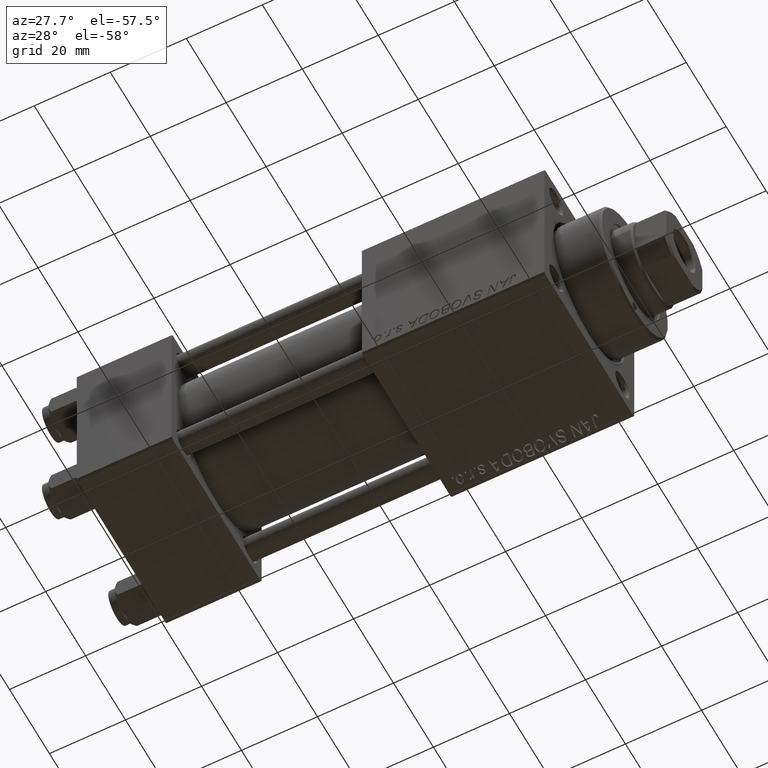
[diagram: clean part render]
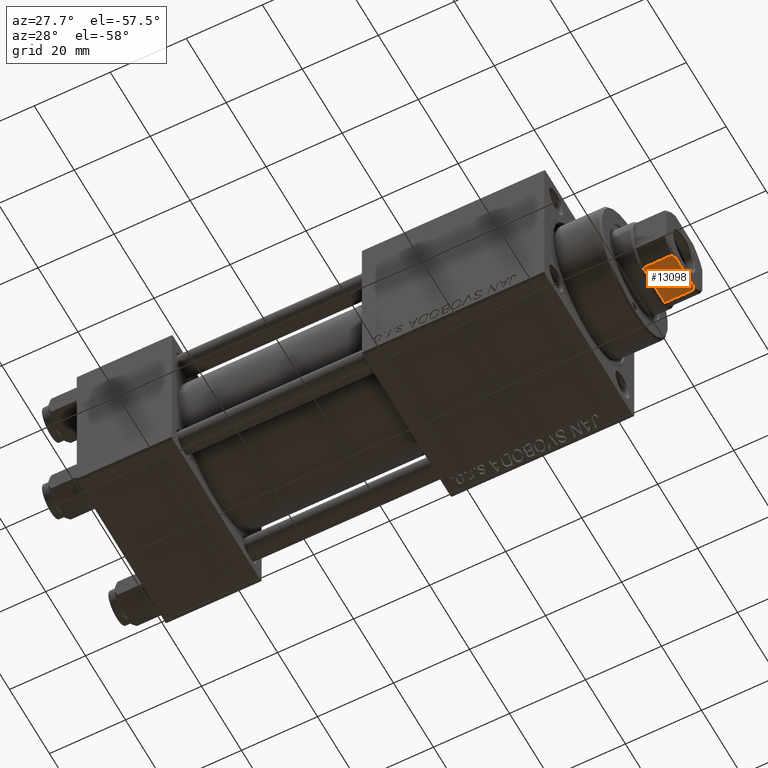
[diagram: same view with one face highlighted and labeled with its STEP entity id]
A machine part, auxiliary view. The second image highlights one B-rep face of the part: STEP entity #13098.
In plain terms, the highlighted planar face has unit normal (0, -0, 1).
Its self-contained STEP definition (entity closure, byte-faithful):
#1069 = ORIENTED_EDGE ( 'NONE', *, *, #26502, .T. ) ;
#1224 = EDGE_CURVE ( 'NONE', #47502, #37050, #48627, .T. ) ;
#2815 = EDGE_CURVE ( 'NONE', #32771, #4378, #49076, .T. ) ;
#3048 = LINE ( 'NONE', #22654, #24025 ) ;
#3330 = CARTESIAN_POINT ( 'NONE',  ( -9.000000000000003553, 8.999999999999998224, 123.0000000000000000 ) ) ;
#4230 = VERTEX_POINT ( 'NONE', #10429 ) ;
#4378 = VERTEX_POINT ( 'NONE', #7382 ) ;
#7382 = CARTESIAN_POINT ( 'NONE',  ( 5.408326913195989682, 8.999999999999998224, 122.4999999999999716 ) ) ;
#8736 = CARTESIAN_POINT ( 'NONE',  ( 5.408326913195989682, 8.999999999999998224, 122.4999999999999716 ) ) ;
#9314 = LINE ( 'NONE', #24872, #16425 ) ;
#10429 = CARTESIAN_POINT ( 'NONE',  ( -5.408326913195987018, 8.999999999999998224, 115.0000000000000284 ) ) ;
#11266 = ORIENTED_EDGE ( 'NONE', *, *, #2815, .T. ) ;
#11533 = CARTESIAN_POINT ( 'NONE',  ( -5.408326913195988794, 8.999999999999998224, 122.5000000000000000 ) ) ;
#11959 = DIRECTION ( 'NONE',  ( -1.000000000000000000, -0.000000000000000000, -0.000000000000000000 ) ) ;
#12836 = CARTESIAN_POINT ( 'NONE',  ( 4.358898943540597593, 8.999999999999998224, 123.0000000000000000 ) ) ;
#13098 = ADVANCED_FACE ( 'NONE', ( #29899 ), #13855, .F. ) ;
#13855 = PLANE ( 'NONE',  #23443 ) ;
#14867 = CARTESIAN_POINT ( 'NONE',  ( -9.000000000000003553, 8.999999999999998224, 123.0000000000000000 ) ) ;
#16054 = EDGE_CURVE ( 'NONE', #23258, #4378, #20940, .T. ) ;
#16425 = VECTOR ( 'NONE', #40400, 1000.000000000000000 ) ;
#16619 = CARTESIAN_POINT ( 'NONE',  ( 5.408326913195989682, 8.999999999999998224, -0.001000000000001000089 ) ) ;
#20940 = LINE ( 'NONE', #16619, #29218 ) ;
#22654 = CARTESIAN_POINT ( 'NONE',  ( -9.000000000000003553, 8.999999999999998224, 115.0000000000000000 ) ) ;
#22776 = DIRECTION ( 'NONE',  ( 0.000000000000000000, -1.000000000000000000, 0.000000000000000000 ) ) ;
#23258 = VERTEX_POINT ( 'NONE', #44465 ) ;
#23443 = AXIS2_PLACEMENT_3D ( 'NONE', #14867, #22776, #25827 ) ;
#24025 = VECTOR ( 'NONE', #11959, 1000.000000000000000 ) ;
#24872 = CARTESIAN_POINT ( 'NONE',  ( -5.408326913195988794, 8.999999999999998224, -0.001000000000001000089 ) ) ;
#25189 = EDGE_CURVE ( 'NONE', #32771, #37050, #42025, .T. ) ;
#25827 = DIRECTION ( 'NONE',  ( 0.000000000000000000, -0.000000000000000000, -1.000000000000000000 ) ) ;
#26101 = ORIENTED_EDGE ( 'NONE', *, *, #25189, .F. ) ;
#26502 = EDGE_CURVE ( 'NONE', #4230, #47502, #9314, .T. ) ;
#26953 = VECTOR ( 'NONE', #43713, 1000.000000000000000 ) ;
#28101 = CARTESIAN_POINT ( 'NONE',  ( 5.063687070142423252, 8.999999999999998224, 122.6775166608138932 ) ) ;
#28591 = CARTESIAN_POINT ( 'NONE',  ( 4.714305797500202289, 8.999999999999998224, 122.8450817439748306 ) ) ;
#29218 = VECTOR ( 'NONE', #36213, 1000.000000000000000 ) ;
#29899 = FACE_OUTER_BOUND ( 'NONE', #36767, .T. ) ;
#30345 = ORIENTED_EDGE ( 'NONE', *, *, #16054, .F. ) ;
#30808 = ORIENTED_EDGE ( 'NONE', *, *, #39078, .T. ) ;
#31135 = CARTESIAN_POINT ( 'NONE',  ( -4.358898943540671311, 8.999999999999998224, 123.0000000000000000 ) ) ;
#32771 = VERTEX_POINT ( 'NONE', #12836 ) ;
#35735 = CARTESIAN_POINT ( 'NONE',  ( 4.358898943540597593, 8.999999999999998224, 123.0000000000000000 ) ) ;
#36213 = DIRECTION ( 'NONE',  ( -0.000000000000000000, -0.000000000000000000, 1.000000000000000000 ) ) ;
#36767 = EDGE_LOOP ( 'NONE', ( #26101, #11266, #30345, #30808, #1069, #43900 ) ) ;
#37050 = VERTEX_POINT ( 'NONE', #41225 ) ;
#38781 = CARTESIAN_POINT ( 'NONE',  ( -4.714305797500250250, 8.999999999999998224, 122.8450817439748448 ) ) ;
#39078 = EDGE_CURVE ( 'NONE', #23258, #4230, #3048, .T. ) ;
#40400 = DIRECTION ( 'NONE',  ( -0.000000000000000000, -0.000000000000000000, 1.000000000000000000 ) ) ;
#41225 = CARTESIAN_POINT ( 'NONE',  ( -4.358898943540671311, 8.999999999999998224, 123.0000000000000000 ) ) ;
#42025 = LINE ( 'NONE', #3330, #26953 ) ;
#42514 = CARTESIAN_POINT ( 'NONE',  ( -5.408326913195988794, 8.999999999999998224, 122.5000000000000000 ) ) ;
#42600 = CARTESIAN_POINT ( 'NONE',  ( -5.063687070142449009, 8.999999999999998224, 122.6775166608139216 ) ) ;
#43713 = DIRECTION ( 'NONE',  ( -1.000000000000000000, -0.000000000000000000, -0.000000000000000000 ) ) ;
#43900 = ORIENTED_EDGE ( 'NONE', *, *, #1224, .T. ) ;
#44465 = CARTESIAN_POINT ( 'NONE',  ( 5.408326913195989682, 8.999999999999998224, 115.0000000000000284 ) ) ;
#47502 = VERTEX_POINT ( 'NONE', #42514 ) ;
#48627 = B_SPLINE_CURVE_WITH_KNOTS ( 'NONE', 3,
 ( #11533, #42600, #38781, #31135 ),
 .UNSPECIFIED., .F., .F.,
 ( 4, 4 ),
 ( 0.000000000000000000, 0.001162453897363196044 ),
 .UNSPECIFIED. ) ;
#49076 = B_SPLINE_CURVE_WITH_KNOTS ( 'NONE', 3,
 ( #35735, #28591, #28101, #8736 ),
 .UNSPECIFIED., .F., .F.,
 ( 4, 4 ),
 ( 8.673617379884035472E-19, 0.001162453897363272806 ),
 .UNSPECIFIED. ) ;